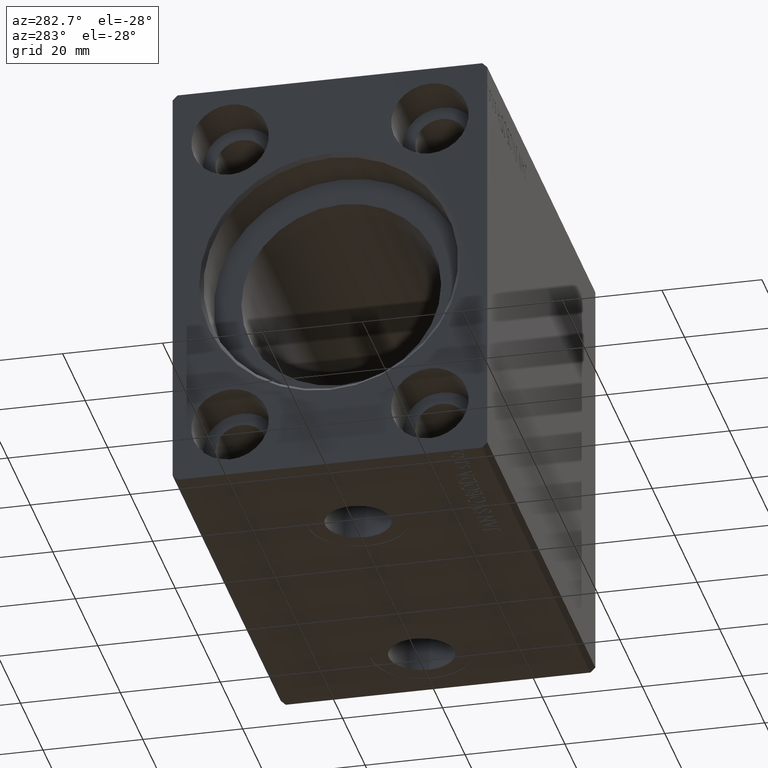
[diagram: clean part render]
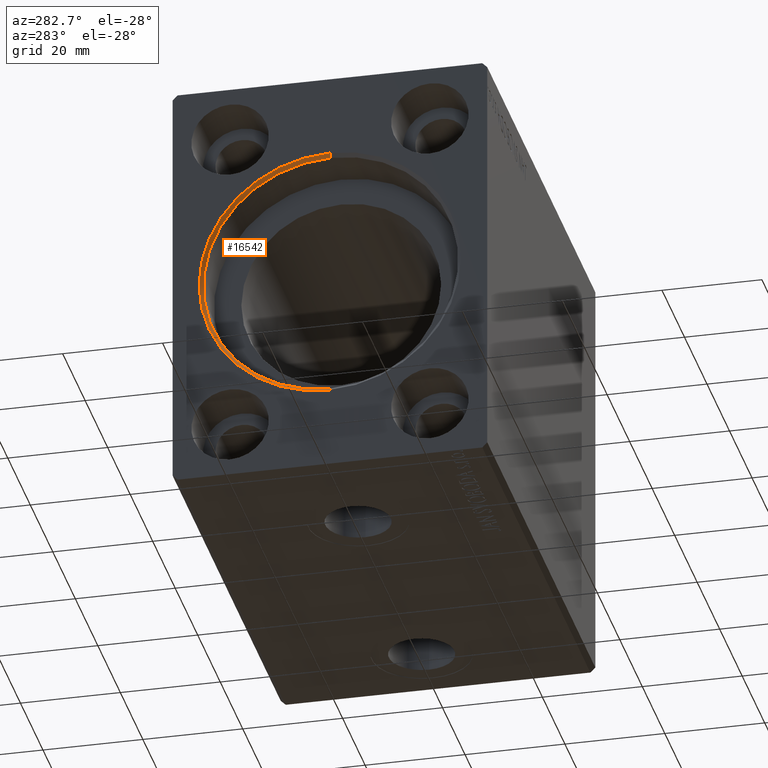
[diagram: same view with one face highlighted and labeled with its STEP entity id]
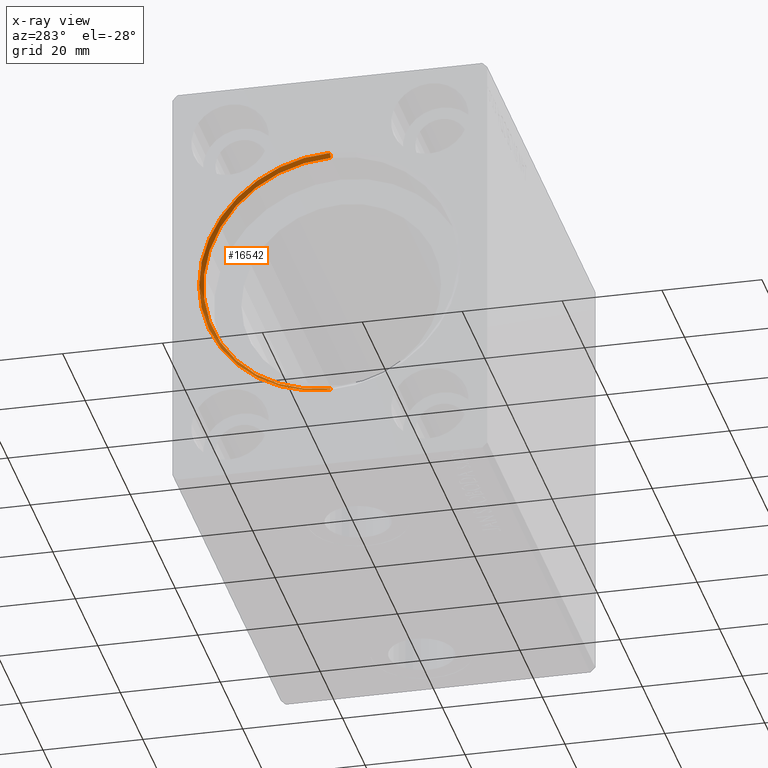
[diagram: x-ray of the same camera — body ghosted, the highlighted face saturated]
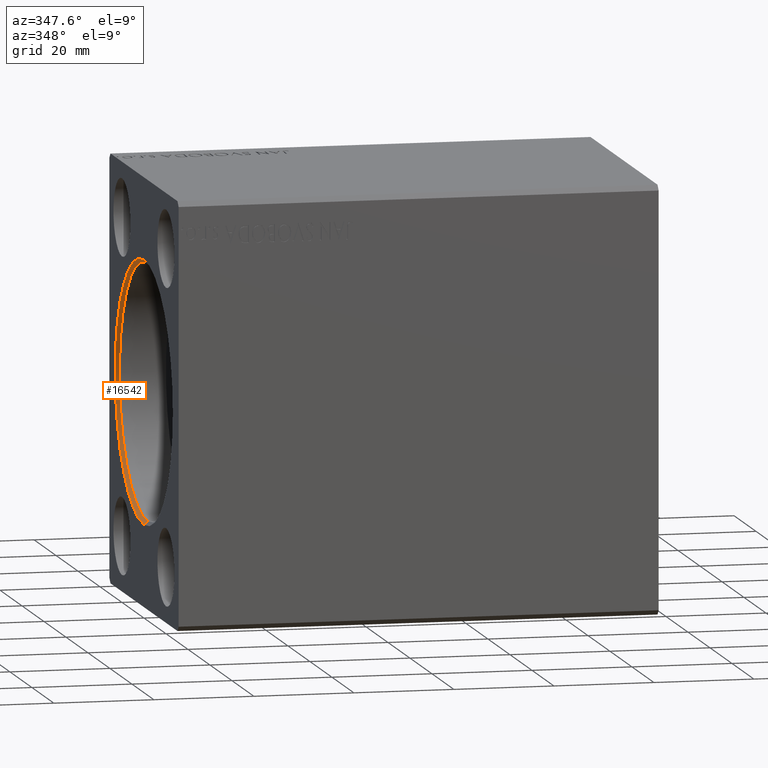
[diagram: same view with one face highlighted and labeled with its STEP entity id]
A machine part, auxiliary view. The second image highlights one B-rep face of the part: STEP entity #16542.
The next image is the same camera in x-ray: the body ghosted, the highlighted face saturated — about 0% of this face is hidden behind the body in this view.
A second angle (auxiliary view) of the same face is appended — the face is thin or edge-on in the first view.
In plain terms, the highlighted conical surface has half-angle 45 deg.
Its self-contained STEP definition (entity closure, byte-faithful):
#758 = CARTESIAN_POINT ( 'NONE',  ( 0.000000000000000000, 3.208574613766063722E-15, -26.19999999999998863 ) ) ;
#770 = EDGE_CURVE ( 'NONE', #35470, #27229, #30506, .T. ) ;
#843 = CONICAL_SURFACE ( 'NONE', #37875, 25.50000000000000000, 0.7853981633974557175 ) ;
#1131 = DIRECTION ( 'NONE',  ( 0.000000000000000000, 0.000000000000000000, 1.000000000000000000 ) ) ;
#1760 = CARTESIAN_POINT ( 'NONE',  ( 0.6999999999999784173, 0.000000000000000000, 0.000000000000000000 ) ) ;
#2132 = ORIENTED_EDGE ( 'NONE', *, *, #2568, .T. ) ;
#2301 = VECTOR ( 'NONE', #10906, 1000.000000000000000 ) ;
#2568 = EDGE_CURVE ( 'NONE', #35984, #42159, #40549, .T. ) ;
#3173 = AXIS2_PLACEMENT_3D ( 'NONE', #15998, #25667, #38779 ) ;
#3226 = ORIENTED_EDGE ( 'NONE', *, *, #33113, .F. ) ;
#6011 = CARTESIAN_POINT ( 'NONE',  ( 0.6999999999999784173, 0.000000000000000000, 25.50000000000000000 ) ) ;
#6937 = AXIS2_PLACEMENT_3D ( 'NONE', #21304, #41099, #41307 ) ;
#7114 = ORIENTED_EDGE ( 'NONE', *, *, #770, .F. ) ;
#10906 = DIRECTION ( 'NONE',  ( -0.7071067811865422437, 0.000000000000000000, 0.7071067811865527908 ) ) ;
#12989 = EDGE_CURVE ( 'NONE', #35984, #35470, #25459, .T. ) ;
#14855 = DIRECTION ( 'NONE',  ( -1.000000000000000000, 0.000000000000000000, 0.000000000000000000 ) ) ;
#15998 = CARTESIAN_POINT ( 'NONE',  ( 0.000000000000000000, 0.000000000000000000, 0.000000000000000000 ) ) ;
#16542 = ADVANCED_FACE ( 'NONE', ( #20865 ), #843, .F. ) ;
#16677 = VECTOR ( 'NONE', #39981, 1000.000000000000000 ) ;
#17569 = CIRCLE ( 'NONE', #3173, 26.19999999999998863 ) ;
#20865 = FACE_OUTER_BOUND ( 'NONE', #41721, .T. ) ;
#20981 = CARTESIAN_POINT ( 'NONE',  ( 0.6999999999999784173, 0.000000000000000000, 25.50000000000000000 ) ) ;
#21304 = CARTESIAN_POINT ( 'NONE',  ( 0.6999999999999784173, 0.000000000000000000, 0.000000000000000000 ) ) ;
#25459 = CIRCLE ( 'NONE', #6937, 25.50000000000000000 ) ;
#25667 = DIRECTION ( 'NONE',  ( 1.000000000000000000, 0.000000000000000000, 0.000000000000000000 ) ) ;
#27229 = VERTEX_POINT ( 'NONE', #758 ) ;
#27843 = ORIENTED_EDGE ( 'NONE', *, *, #12989, .F. ) ;
#30506 = LINE ( 'NONE', #36339, #16677 ) ;
#31400 = CARTESIAN_POINT ( 'NONE',  ( 0.000000000000000000, 0.000000000000000000, 26.19999999999998863 ) ) ;
#33113 = EDGE_CURVE ( 'NONE', #27229, #42159, #17569, .T. ) ;
#35470 = VERTEX_POINT ( 'NONE', #35665 ) ;
#35665 = CARTESIAN_POINT ( 'NONE',  ( 0.6999999999999784173, 3.122849337825750222E-15, -25.50000000000000000 ) ) ;
#35984 = VERTEX_POINT ( 'NONE', #6011 ) ;
#36339 = CARTESIAN_POINT ( 'NONE',  ( 0.6999999999999784173, 3.122849337825750222E-15, -25.50000000000000000 ) ) ;
#37875 = AXIS2_PLACEMENT_3D ( 'NONE', #1760, #14855, #1131 ) ;
#38779 = DIRECTION ( 'NONE',  ( 0.000000000000000000, 0.000000000000000000, -1.000000000000000000 ) ) ;
#39981 = DIRECTION ( 'NONE',  ( -0.7071067811865422437, 8.659560562354996953E-17, -0.7071067811865527908 ) ) ;
#40549 = LINE ( 'NONE', #20981, #2301 ) ;
#41099 = DIRECTION ( 'NONE',  ( -1.000000000000000000, 0.000000000000000000, 0.000000000000000000 ) ) ;
#41307 = DIRECTION ( 'NONE',  ( 0.000000000000000000, 0.000000000000000000, -1.000000000000000000 ) ) ;
#41721 = EDGE_LOOP ( 'NONE', ( #7114, #27843, #2132, #3226 ) ) ;
#42159 = VERTEX_POINT ( 'NONE', #31400 ) ;